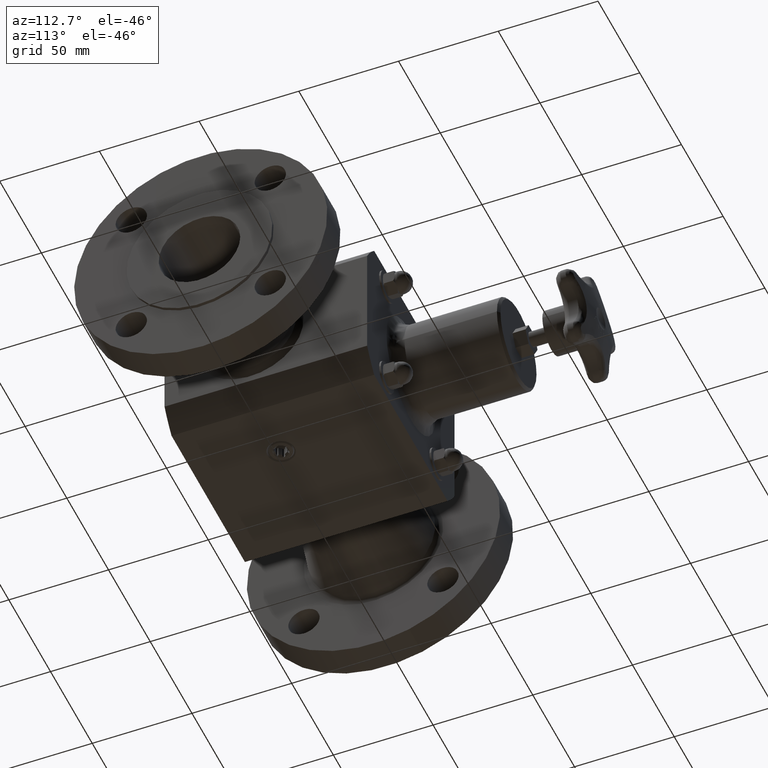
[diagram: clean part render]
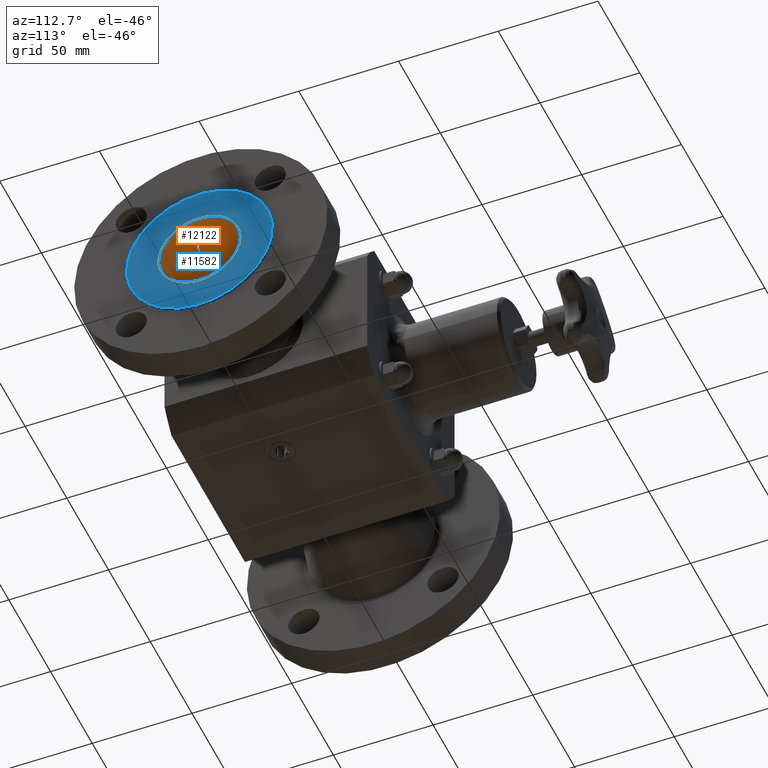
[diagram: same view with the hole feature highlighted: cylindrical wall and planar end face, labeled with their STEP entity ids]
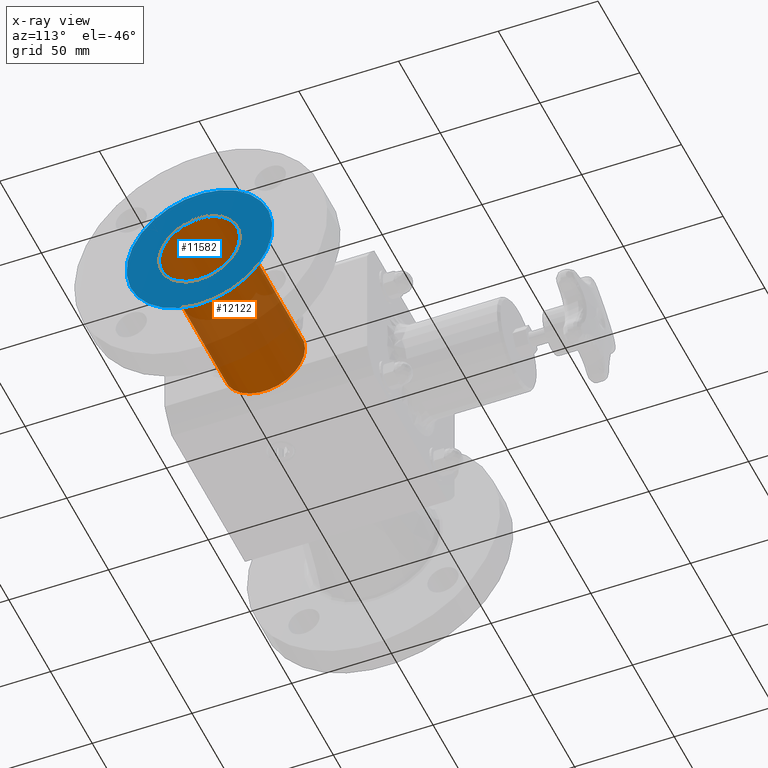
[diagram: x-ray of the same camera — body ghosted, the hole faces saturated]
A machine part, auxiliary view. The highlighted faces form one hole feature of diameter 40.894 mm: the cylindrical wall (entity #12122, orange) and its adjacent planar end face (entity #11582, blue) — they share a circular edge in the B-rep.
The next image is the same camera in x-ray (body ghosted, the hole faces saturated) — the bore reads through the body.
Wall:
#11571=CARTESIAN_POINT('',(4.447500000010302,1.460360677429007,-0.772437452141199));
#11572=VERTEX_POINT('',#11571);
#11573=CARTESIAN_POINT('',(4.447500000010302,1.687000000000029,9.981385E-016));
#11574=DIRECTION('',(1.0,-3.734826E-016,3.734826E-016));
#11575=DIRECTION('',(-5.281841E-016,-0.707106781186553,0.707106781186542));
#11576=AXIS2_PLACEMENT_3D('',#11573,#11574,#11575);
#11577=CIRCLE('',#11576,0.805000000003000);
#11578=EDGE_CURVE('',#11572,#11572,#11577,.T.);
#12099=CARTESIAN_POINT('',(1.387500000000000,2.492000000000001,1.401196E-016));
#12100=VERTEX_POINT('',#12099);
#12101=CARTESIAN_POINT('',(1.387500000000000,1.687000000000001,1.470318E-016));
#12102=DIRECTION('',(1.0,0.0,0.0));
#12103=DIRECTION('',(0.0,1.0,0.0));
#12104=AXIS2_PLACEMENT_3D('',#12101,#12102,#12103);
#12105=CIRCLE('',#12104,0.805000000000000);
#12106=EDGE_CURVE('',#12100,#12100,#12105,.T.);
#12111=CARTESIAN_POINT('',(1.725000000000000,1.687000000000001,1.863197E-016));
#12112=DIRECTION('',(1.0,2.220446E-016,1.164088E-016));
#12113=DIRECTION('',(0.0,1.0,0.0));
#12114=AXIS2_PLACEMENT_3D('',#12111,#12112,#12113);
#12115=CYLINDRICAL_SURFACE('',#12114,0.805000000000000);
#12116=ORIENTED_EDGE('',*,*,#11578,.T.);
#12117=EDGE_LOOP('',(#12116));
#12118=FACE_OUTER_BOUND('',#12117,.T.);
#12119=ORIENTED_EDGE('',*,*,#12106,.F.);
#12120=EDGE_LOOP('',(#12119));
#12121=FACE_BOUND('',#12120,.T.);
#12122=ADVANCED_FACE('',(#12118,#12121),#12115,.F.);
End face:
#11555=CARTESIAN_POINT('',(4.447500000010303,2.256220958857317,0.569220958857298));
#11556=DIRECTION('',(1.0,0.0,0.0));
#11557=DIRECTION('',(0.0,0.707106781186553,-0.707106781186542));
#11558=AXIS2_PLACEMENT_3D('',#11555,#11556,#11557);
#11559=PLANE('',#11558);
#11560=CARTESIAN_POINT('',(4.447500000010201,2.092416924848983,1.381751467185747));
#11561=VERTEX_POINT('',#11560);
#11562=CARTESIAN_POINT('',(4.447500000010302,1.687000000000029,9.981385E-016));
#11563=DIRECTION('',(1.000000000000000,-3.734826E-016,3.734826E-016));
#11564=DIRECTION('',(-5.281841E-016,-0.707106781186553,0.707106781186542));
#11565=AXIS2_PLACEMENT_3D('',#11562,#11563,#11564);
#11566=CIRCLE('',#11565,1.440000000010000);
#11567=EDGE_CURVE('',#11561,#11561,#11566,.T.);
#11568=ORIENTED_EDGE('',*,*,#11567,.T.);
#11569=EDGE_LOOP('',(#11568));
#11570=FACE_OUTER_BOUND('',#11569,.T.);
#11571=CARTESIAN_POINT('',(4.447500000010302,1.460360677429007,-0.772437452141199));
#11572=VERTEX_POINT('',#11571);
#11573=CARTESIAN_POINT('',(4.447500000010302,1.687000000000029,9.981385E-016));
#11574=DIRECTION('',(1.0,-3.734826E-016,3.734826E-016));
#11575=DIRECTION('',(-5.281841E-016,-0.707106781186553,0.707106781186542));
#11576=AXIS2_PLACEMENT_3D('',#11573,#11574,#11575);
#11577=CIRCLE('',#11576,0.805000000003000);
#11578=EDGE_CURVE('',#11572,#11572,#11577,.T.);
#11579=ORIENTED_EDGE('',*,*,#11578,.F.);
#11580=EDGE_LOOP('',(#11579));
#11581=FACE_BOUND('',#11580,.T.);
#11582=ADVANCED_FACE('',(#11570,#11581),#11559,.T.);